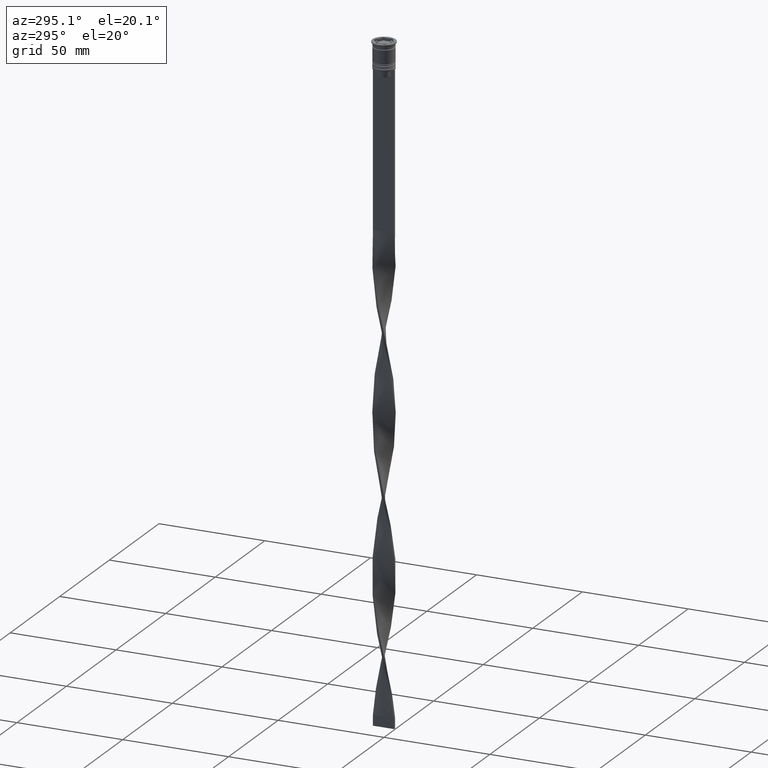
[diagram: clean part render]
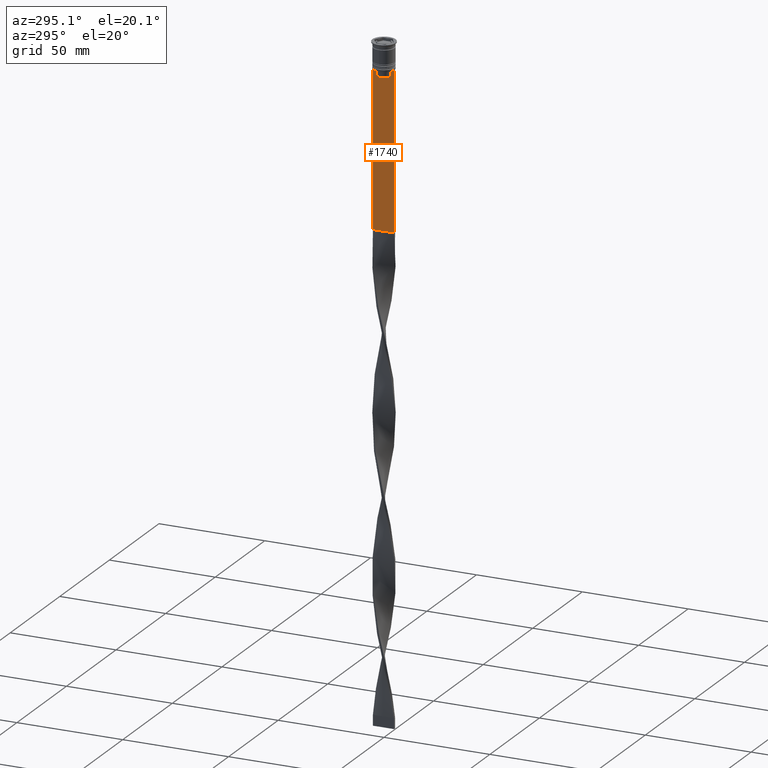
[diagram: same view with one face highlighted and labeled with its STEP entity id]
A machine part, auxiliary view. The second image highlights one B-rep face of the part: STEP entity #1740.
In plain terms, the highlighted planar face has unit normal (-1, 0, 0).
Its self-contained STEP definition (entity closure, byte-faithful):
#83 = CARTESIAN_POINT ( 'NONE',  ( -0.5000000000000000000, 3.399999999999998135, -15.50000000000000000 ) ) ;
#91 = DIRECTION ( 'NONE',  ( 0.000000000000000000, -1.000000000000000000, 0.000000000000000000 ) ) ;
#106 = VECTOR ( 'NONE', #4039, 1000.000000000000000 ) ;
#141 = EDGE_CURVE ( 'NONE', #1257, #1872, #2304, .T. ) ;
#171 = DIRECTION ( 'NONE',  ( 0.000000000000000000, 0.000000000000000000, 1.000000000000000000 ) ) ;
#243 = CARTESIAN_POINT ( 'NONE',  ( -0.5000000000000000000, -3.363034344160045652, -15.50000000000000000 ) ) ;
#283 = CARTESIAN_POINT ( 'NONE',  ( -0.5000000000000000000, -4.999999999999999112, -2.450124378879110054 ) ) ;
#302 = VECTOR ( 'NONE', #2552, 1000.000000000000000 ) ;
#411 = ORIENTED_EDGE ( 'NONE', *, *, #3438, .F. ) ;
#536 = CARTESIAN_POINT ( 'NONE',  ( -0.5000000000000000000, 3.531412678228260216, -12.83345231756357840 ) ) ;
#566 = LINE ( 'NONE', #1229, #302 ) ;
#573 = VECTOR ( 'NONE', #1529, 1000.000000000000000 ) ;
#606 = LINE ( 'NONE', #283, #106 ) ;
#687 = DIRECTION ( 'NONE',  ( 0.000000000000000000, 0.000000000000000000, -1.000000000000000000 ) ) ;
#720 = DIRECTION ( 'NONE',  ( 0.000000000000000000, -1.000000000000000000, 0.000000000000000000 ) ) ;
#817 = EDGE_CURVE ( 'NONE', #1715, #2170, #566, .T. ) ;
#836 = EDGE_CURVE ( 'NONE', #3916, #1257, #4083, .T. ) ;
#838 = VECTOR ( 'NONE', #2210, 1000.000000000000000 ) ;
#883 = ORIENTED_EDGE ( 'NONE', *, *, #1861, .F. ) ;
#896 = VECTOR ( 'NONE', #720, 1000.000000000000000 ) ;
#921 = DIRECTION ( 'NONE',  ( 0.000000000000000000, -1.000000000000000000, 0.000000000000000000 ) ) ;
#1026 = CARTESIAN_POINT ( 'NONE',  ( -0.5000000000000000000, -3.867815921162742754, -12.50000000000000000 ) ) ;
#1064 = CARTESIAN_POINT ( 'NONE',  ( -0.5000000000000000000, 5.000000000000000888, -2.450124378879110054 ) ) ;
#1126 = VERTEX_POINT ( 'NONE', #3979 ) ;
#1154 = CARTESIAN_POINT ( 'NONE',  ( -0.5000000000000000000, -4.999999999999999112, -2.450124378879110054 ) ) ;
#1205 = CARTESIAN_POINT ( 'NONE',  ( -0.5000000000000000000, -3.363034344160045208, -13.00000000000000178 ) ) ;
#1216 = EDGE_CURVE ( 'NONE', #3415, #3916, #3650, .T. ) ;
#1229 = CARTESIAN_POINT ( 'NONE',  ( -0.5000000000000000000, -4.999999999999999112, -12.50000000000000000 ) ) ;
#1242 = LINE ( 'NONE', #3793, #838 ) ;
#1257 = VERTEX_POINT ( 'NONE', #3079 ) ;
#1279 = ORIENTED_EDGE ( 'NONE', *, *, #2946, .F. ) ;
#1298 = CARTESIAN_POINT ( 'NONE',  ( -0.5000000000000000000, -4.874423042781575788, -12.50000000000000000 ) ) ;
#1329 = ORIENTED_EDGE ( 'NONE', *, *, #817, .F. ) ;
#1331 = CARTESIAN_POINT ( 'NONE',  ( -0.5000000000000000000, -4.999999999999999112, -12.50000000000000000 ) ) ;
#1341 = CARTESIAN_POINT ( 'NONE',  ( -0.5000000000000000000, -4.999999999999999112, -12.50000000000000000 ) ) ;
#1344 = ORIENTED_EDGE ( 'NONE', *, *, #836, .F. ) ;
#1425 = EDGE_CURVE ( 'NONE', #2511, #1536, #1934, .T. ) ;
#1426 = CARTESIAN_POINT ( 'NONE',  ( -0.5000000000000000000, 5.000000000000000888, -12.50000000000000000 ) ) ;
#1504 = VECTOR ( 'NONE', #91, 1000.000000000000000 ) ;
#1527 = CARTESIAN_POINT ( 'NONE',  ( -0.5000000000000000000, -3.867815921162742754, -12.50000000000000000 ) ) ;
#1529 = DIRECTION ( 'NONE',  ( 0.000000000000000000, 0.000000000000000000, -1.000000000000000000 ) ) ;
#1536 = VERTEX_POINT ( 'NONE', #2273 ) ;
#1636 = EDGE_LOOP ( 'NONE', ( #3328, #883, #1329, #2711, #3119, #1279, #2738, #3301, #2558, #411, #3833, #1344 ) ) ;
#1715 = VERTEX_POINT ( 'NONE', #1426 ) ;
#1740 = ADVANCED_FACE ( 'NONE', ( #1789 ), #2424, .T. ) ;
#1770 = VERTEX_POINT ( 'NONE', #3365 ) ;
#1789 = FACE_OUTER_BOUND ( 'NONE', #1636, .T. ) ;
#1861 = EDGE_CURVE ( 'NONE', #2170, #3415, #2149, .T. ) ;
#1872 = VERTEX_POINT ( 'NONE', #243 ) ;
#1934 = LINE ( 'NONE', #1341, #1504 ) ;
#1961 = EDGE_CURVE ( 'NONE', #1715, #1126, #3919, .T. ) ;
#2014 = CARTESIAN_POINT ( 'NONE',  ( -0.5000000000000000000, -3.363034344160045208, -13.00000000000000178 ) ) ;
#2061 = DIRECTION ( 'NONE',  ( -1.000000000000000000, 0.000000000000000000, 0.000000000000000000 ) ) ;
#2149 = LINE ( 'NONE', #3130, #2639 ) ;
#2170 = VERTEX_POINT ( 'NONE', #3670 ) ;
#2178 = VECTOR ( 'NONE', #2750, 1000.000000000000000 ) ;
#2203 = CARTESIAN_POINT ( 'NONE',  ( -0.5000000000000000000, 3.363034344160045208, 0.000000000000000000 ) ) ;
#2210 = DIRECTION ( 'NONE',  ( 0.000000000000000000, 1.000000000000000000, 0.000000000000000000 ) ) ;
#2214 = LINE ( 'NONE', #3127, #2178 ) ;
#2273 = CARTESIAN_POINT ( 'NONE',  ( -0.5000000000000000000, -4.999999999999999112, -12.50000000000000000 ) ) ;
#2303 = CARTESIAN_POINT ( 'NONE',  ( -0.5000000000000000000, -3.699658232838647365, -12.66676999593996555 ) ) ;
#2304 = LINE ( 'NONE', #83, #896 ) ;
#2417 = CARTESIAN_POINT ( 'NONE',  ( -0.5000000000000000000, 3.699657965831574913, -12.66677026074361301 ) ) ;
#2424 = PLANE ( 'NONE',  #2757 ) ;
#2449 = B_SPLINE_CURVE_WITH_KNOTS ( 'NONE', 3,
 ( #2014, #3880, #2303, #1026 ),
 .UNSPECIFIED., .F., .F.,
 ( 4, 4 ),
 ( 0.01632394437298965648, 0.01703543518243618576 ),
 .UNSPECIFIED. ) ;
#2472 = EDGE_CURVE ( 'NONE', #1770, #1126, #1242, .T. ) ;
#2511 = VERTEX_POINT ( 'NONE', #1298 ) ;
#2552 = DIRECTION ( 'NONE',  ( 0.000000000000000000, -1.000000000000000000, 0.000000000000000000 ) ) ;
#2558 = ORIENTED_EDGE ( 'NONE', *, *, #3129, .F. ) ;
#2639 = VECTOR ( 'NONE', #921, 1000.000000000000000 ) ;
#2711 = ORIENTED_EDGE ( 'NONE', *, *, #1961, .T. ) ;
#2738 = ORIENTED_EDGE ( 'NONE', *, *, #1425, .F. ) ;
#2750 = DIRECTION ( 'NONE',  ( -0.000000000000000000, -0.000000000000000000, 1.000000000000000000 ) ) ;
#2757 = AXIS2_PLACEMENT_3D ( 'NONE', #1154, #2061, #171 ) ;
#2946 = EDGE_CURVE ( 'NONE', #1536, #1770, #606, .T. ) ;
#2954 = CARTESIAN_POINT ( 'NONE',  ( -0.5000000000000000000, 3.867815921162742754, -12.50000000000000000 ) ) ;
#3025 = EDGE_CURVE ( 'NONE', #3953, #2511, #3240, .T. ) ;
#3079 = CARTESIAN_POINT ( 'NONE',  ( -0.5000000000000000000, 3.363034344160045652, -15.50000000000000000 ) ) ;
#3119 = ORIENTED_EDGE ( 'NONE', *, *, #2472, .F. ) ;
#3127 = CARTESIAN_POINT ( 'NONE',  ( -0.5000000000000000000, -3.363034344160045208, 0.000000000000000000 ) ) ;
#3129 = EDGE_CURVE ( 'NONE', #4041, #3953, #2449, .T. ) ;
#3130 = CARTESIAN_POINT ( 'NONE',  ( -0.5000000000000000000, -4.999999999999999112, -12.50000000000000000 ) ) ;
#3236 = VECTOR ( 'NONE', #687, 1000.000000000000000 ) ;
#3240 = LINE ( 'NONE', #1331, #4098 ) ;
#3301 = ORIENTED_EDGE ( 'NONE', *, *, #3025, .F. ) ;
#3328 = ORIENTED_EDGE ( 'NONE', *, *, #1216, .F. ) ;
#3342 = CARTESIAN_POINT ( 'NONE',  ( -0.5000000000000000000, 3.867815921162742754, -12.50000000000000000 ) ) ;
#3365 = CARTESIAN_POINT ( 'NONE',  ( -0.5000000000000000000, -4.999999999999999112, -86.50000000000000000 ) ) ;
#3415 = VERTEX_POINT ( 'NONE', #2954 ) ;
#3438 = EDGE_CURVE ( 'NONE', #1872, #4041, #2214, .T. ) ;
#3607 = CARTESIAN_POINT ( 'NONE',  ( -0.5000000000000000000, 3.363034344160045208, -13.00000000000000178 ) ) ;
#3650 = B_SPLINE_CURVE_WITH_KNOTS ( 'NONE', 3,
 ( #3342, #2417, #536, #3691 ),
 .UNSPECIFIED., .F., .F.,
 ( 4, 4 ),
 ( 0.006644825462451552783, 0.007355321358912435097 ),
 .UNSPECIFIED. ) ;
#3670 = CARTESIAN_POINT ( 'NONE',  ( -0.5000000000000000000, 4.874423042781575788, -12.50000000000000000 ) ) ;
#3691 = CARTESIAN_POINT ( 'NONE',  ( -0.5000000000000000000, 3.363034344160045208, -13.00000000000000178 ) ) ;
#3793 = CARTESIAN_POINT ( 'NONE',  ( -0.5000000000000000000, -4.999999999999999112, -86.50000000000000000 ) ) ;
#3821 = DIRECTION ( 'NONE',  ( 0.000000000000000000, -1.000000000000000000, 0.000000000000000000 ) ) ;
#3833 = ORIENTED_EDGE ( 'NONE', *, *, #141, .F. ) ;
#3880 = CARTESIAN_POINT ( 'NONE',  ( -0.5000000000000000000, -3.531412985305424801, -12.83345201382502765 ) ) ;
#3916 = VERTEX_POINT ( 'NONE', #3607 ) ;
#3919 = LINE ( 'NONE', #1064, #3236 ) ;
#3953 = VERTEX_POINT ( 'NONE', #1527 ) ;
#3979 = CARTESIAN_POINT ( 'NONE',  ( -0.5000000000000000000, 5.000000000000000888, -86.50000000000000000 ) ) ;
#4039 = DIRECTION ( 'NONE',  ( 0.000000000000000000, 0.000000000000000000, -1.000000000000000000 ) ) ;
#4041 = VERTEX_POINT ( 'NONE', #1205 ) ;
#4083 = LINE ( 'NONE', #2203, #573 ) ;
#4098 = VECTOR ( 'NONE', #3821, 1000.000000000000000 ) ;